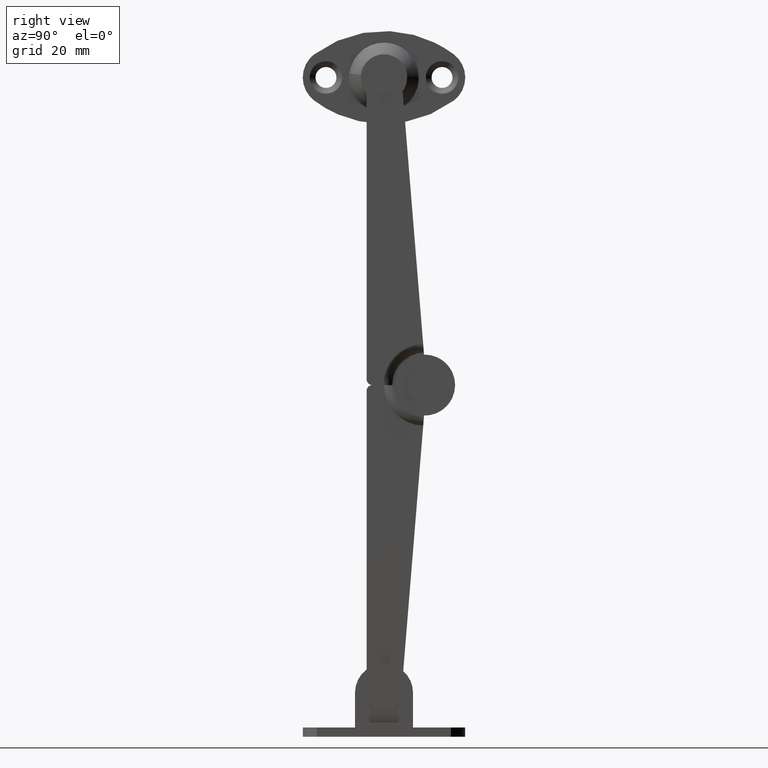
[diagram: clean part render]
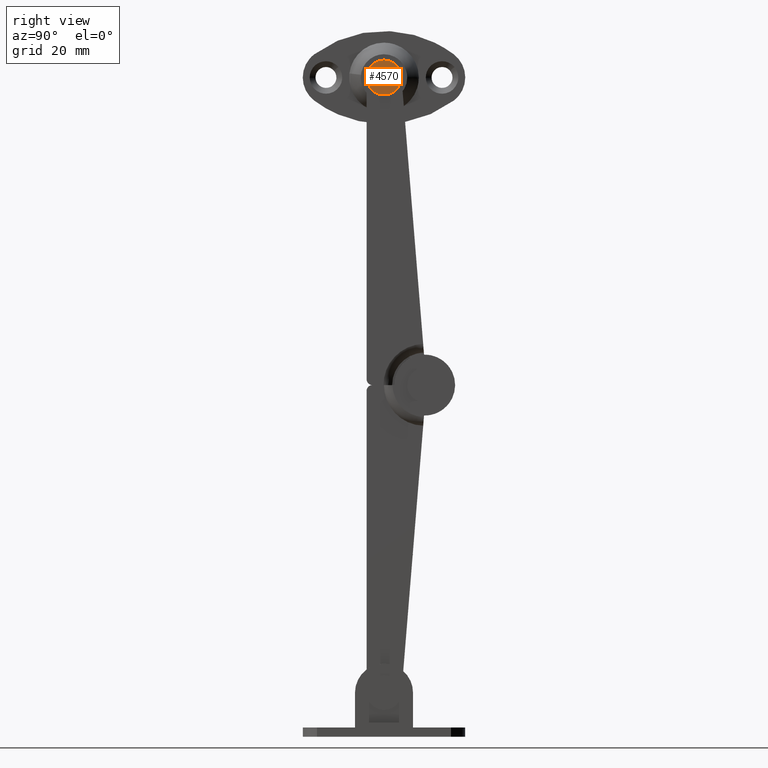
[diagram: same view with one face highlighted and labeled with its STEP entity id]
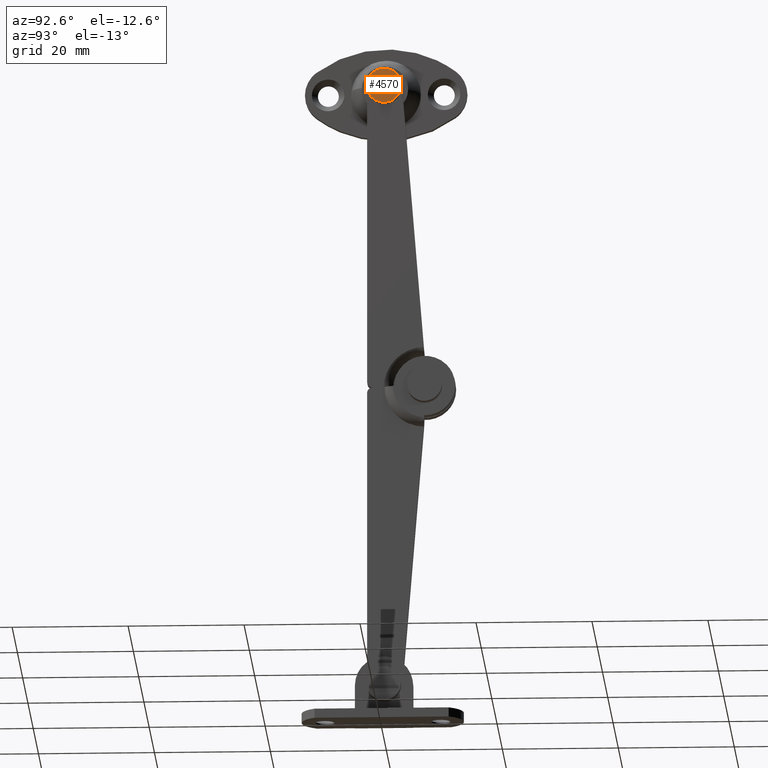
[diagram: same view with one face highlighted and labeled with its STEP entity id]
A machine part, right view. The second image highlights one B-rep face of the part: STEP entity #4570.
A second angle (auxiliary view) of the same face is appended — the face is thin or edge-on in the first view.
In plain terms, the highlighted face is a freeform B-spline surface patch.
Its self-contained STEP definition (entity closure, byte-faithful):
#3945=CARTESIAN_POINT('',(8.600006000000001,-2.149974665749393,55.092302289060243));
#3946=VERTEX_POINT('',#3945);
#3952=CARTESIAN_POINT('',(8.600006000000001,0.0,56.000016000000016));
#3953=VERTEX_POINT('',#3952);
#3954=CARTESIAN_POINT('',(8.600006000000001,0.0,56.000016000000016));
#3955=CARTESIAN_POINT('',(8.600006000000002,-0.324619969360035,56.000192174251033));
#3956=CARTESIAN_POINT('',(8.600006000000013,-0.848828695061505,55.914057964929327));
#3957=CARTESIAN_POINT('',(8.600005999999990,-1.580554864315054,55.583308198679049));
#3958=CARTESIAN_POINT('',(8.600006000000009,-1.958484072088050,55.289210044476263));
#3959=CARTESIAN_POINT('',(8.600006000000001,-2.149974665749393,55.092302289060243));
#3960=B_SPLINE_CURVE_WITH_KNOTS('',3,(#3954,#3955,#3956,#3957,#3958,#3959),.UNSPECIFIED.,.F.,.U.,(4,1,1,4),(0.000000035589235,0.973812623051153,1.573056515301760,2.397052050957979),.UNSPECIFIED.);
#3961=EDGE_CURVE('',#3953,#3946,#3960,.T.);
#3963=CARTESIAN_POINT('',(8.600006000000001,3.000030999999313,52.999987200454122));
#3964=VERTEX_POINT('',#3963);
#3965=CARTESIAN_POINT('',(8.600006000000001,3.000030999999313,52.999987200454122));
#3966=CARTESIAN_POINT('',(8.600005999999997,3.000205111673234,53.319083025363113));
#3967=CARTESIAN_POINT('',(8.600006000000015,2.916994146444666,53.834382309391138));
#3968=CARTESIAN_POINT('',(8.600005999999993,2.627108122429906,54.488242302972210));
#3969=CARTESIAN_POINT('',(8.600006000000034,2.286297200161776,54.972164073667329));
#3970=CARTESIAN_POINT('',(8.600006000000008,1.893333805456837,55.346267433808507));
#3971=CARTESIAN_POINT('',(8.600005999999976,1.443154442697526,55.647071393294070));
#3972=CARTESIAN_POINT('',(8.600006000000043,0.834401487258586,55.916988916370528));
#3973=CARTESIAN_POINT('',(8.600005999999960,0.319092672976322,56.000187173582539));
#3974=CARTESIAN_POINT('',(8.600006000000001,0.0,56.000016000000016));
#3975=B_SPLINE_CURVE_WITH_KNOTS('',3,(#3965,#3966,#3967,#3968,#3969,#3970,#3971,#3972,#3973,#3974),.UNSPECIFIED.,.F.,.U.,(4,1,1,1,1,1,1,4),(0.000000083127394,0.957232552281048,1.546322449495882,2.135394745019926,2.724419648236856,3.166232800659057,3.755323447735699,4.712554688669773),.UNSPECIFIED.);
#3976=EDGE_CURVE('',#3964,#3953,#3975,.T.);
#3978=CARTESIAN_POINT('',(8.600006000000001,0.0,49.999953999999782));
#3979=VERTEX_POINT('',#3978);
#3980=CARTESIAN_POINT('',(8.600006000000001,0.0,49.999953999999782));
#3981=CARTESIAN_POINT('',(8.600006000000011,0.269984878531708,49.999876543216700));
#3982=CARTESIAN_POINT('',(8.600005999999997,0.834468203107465,50.076629101255229));
#3983=CARTESIAN_POINT('',(8.600005999999992,1.628413386107739,50.428444638864107));
#3984=CARTESIAN_POINT('',(8.600006000000020,2.229560660308221,50.947081599226259));
#3985=CARTESIAN_POINT('',(8.600005999999992,2.627094460080848,51.511748613949159));
#3986=CARTESIAN_POINT('',(8.600006000000002,2.916993808077904,52.165592394267158));
#3987=CARTESIAN_POINT('',(8.600005999999979,3.000206100225257,52.680892524089629));
#3988=CARTESIAN_POINT('',(8.600006000000001,3.000030999999313,52.999987200454122));
#3989=B_SPLINE_CURVE_WITH_KNOTS('',3,(#3980,#3981,#3982,#3983,#3984,#3985,#3986,#3987,#3988),.UNSPECIFIED.,.F.,.U.,(4,1,1,1,1,1,4),(0.000000080103636,0.809957264083037,1.693597944855833,2.577160463307529,3.166234468517788,3.755325425346444,4.712557169156471),.UNSPECIFIED.);
#3990=EDGE_CURVE('',#3979,#3964,#3989,.T.);
#3992=CARTESIAN_POINT('',(8.600006000000001,-2.211855201529459,50.973192988819797));
#3993=VERTEX_POINT('',#3992);
#3994=CARTESIAN_POINT('',(8.600006000000001,-2.211855201529459,50.973192988819797));
#3995=CARTESIAN_POINT('',(8.600006000000020,-1.949573448693061,50.686331804798741));
#3996=CARTESIAN_POINT('',(8.600005999999979,-1.460310360726980,50.326917383335363));
#3997=CARTESIAN_POINT('',(8.600006000000033,-0.673565659722793,50.051575284913021));
#3998=CARTESIAN_POINT('',(8.600005999999976,-0.233171421631611,49.999904291045723));
#3999=CARTESIAN_POINT('',(8.600006000000001,0.0,49.999953999999782));
#4000=B_SPLINE_CURVE_WITH_KNOTS('',3,(#3994,#3995,#3996,#3997,#3998,#3999),.UNSPECIFIED.,.F.,.U.,(4,1,1,4),(0.000000023747349,1.165870644636064,1.787667446892047,2.487189546250982),.UNSPECIFIED.);
#4001=EDGE_CURVE('',#3993,#3979,#4000,.T.);
#4083=CARTESIAN_POINT('',(8.600006000000001,-3.000030999999313,52.999982799545670));
#4084=VERTEX_POINT('',#4083);
#4085=CARTESIAN_POINT('',(8.600006000000001,-3.000030999999313,52.999982799545670));
#4086=CARTESIAN_POINT('',(8.600005999999995,-3.000112184061656,52.744986812568953));
#4087=CARTESIAN_POINT('',(8.600006000000011,-2.943513822865380,52.304610344428887));
#4088=CARTESIAN_POINT('',(8.600005999999997,-2.689719167739534,51.604193094574441));
#4089=CARTESIAN_POINT('',(8.600006000000009,-2.415549721578288,51.195297090856627));
#4090=CARTESIAN_POINT('',(8.600006000000001,-2.211855201529459,50.973192988819797));
#4091=B_SPLINE_CURVE_WITH_KNOTS('',3,(#4085,#4086,#4087,#4088,#4089,#4090),.UNSPECIFIED.,.F.,.U.,(4,1,1,4),(0.000000039539529,0.764977923892367,1.321296403905937,2.225365705695333),.UNSPECIFIED.);
#4092=EDGE_CURVE('',#4084,#3993,#4091,.T.);
#4094=CARTESIAN_POINT('',(8.600006000000001,-2.149974665749393,55.092302289060243));
#4095=CARTESIAN_POINT('',(8.600006000000006,-2.335079545216816,54.902218319287307));
#4096=CARTESIAN_POINT('',(8.600006000000001,-2.610724485174291,54.531088452728369));
#4097=CARTESIAN_POINT('',(8.600005999999999,-2.919876538023981,53.819947751951510));
#4098=CARTESIAN_POINT('',(8.600006000000006,-3.000182842086241,53.313557616705658));
#4099=CARTESIAN_POINT('',(8.600006000000001,-3.000030999999313,52.999982799545670));
#4100=B_SPLINE_CURVE_WITH_KNOTS('',3,(#4094,#4095,#4096,#4097,#4098,#4099),.UNSPECIFIED.,.F.,.U.,(4,1,1,4),(0.000000030067388,0.795963151373376,1.374822330406374,2.315505751708115),.UNSPECIFIED.);
#4101=EDGE_CURVE('',#3946,#4084,#4100,.T.);
#4557=CARTESIAN_POINT('',(8.600006000000001,-3.299734085269959,56.299718331618550));
#4558=CARTESIAN_POINT('',(8.600006000000001,-3.299734085269959,49.700251239223363));
#4559=CARTESIAN_POINT('',(8.600006000000001,3.299734246204163,56.299718331618550));
#4560=CARTESIAN_POINT('',(8.600006000000001,3.299734246204163,49.700251239223363));
#4561=B_SPLINE_SURFACE_WITH_KNOTS('',1,1,((#4557,#4559),(#4558,#4560)),.UNSPECIFIED.,.F.,.F.,.U.,(2,2),(2,2),(0.0,6.599467092395187),(0.0,6.599468331474123),.UNSPECIFIED.);
#4562=ORIENTED_EDGE('',*,*,#3961,.T.);
#4563=ORIENTED_EDGE('',*,*,#4101,.T.);
#4564=ORIENTED_EDGE('',*,*,#4092,.T.);
#4565=ORIENTED_EDGE('',*,*,#4001,.T.);
#4566=ORIENTED_EDGE('',*,*,#3990,.T.);
#4567=ORIENTED_EDGE('',*,*,#3976,.T.);
#4568=EDGE_LOOP('',(#4562,#4563,#4564,#4565,#4566,#4567));
#4569=FACE_OUTER_BOUND('',#4568,.T.);
#4570=ADVANCED_FACE('',(#4569),#4561,.T.);